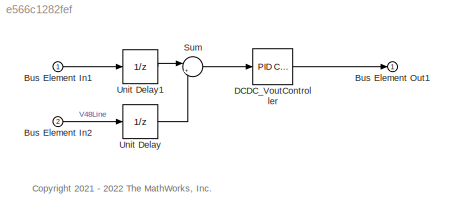
MODEL slx_e566c1282fef
KIND model
BLOCK [Inport] Bus Element In1
BLOCK [Inport] Bus Element In2
  Port = 2
BLOCK [Outport] Bus Element Out1
BLOCK [Reference] DCDC_VoutController  REF=slpidlib/PID Controller
  SourceBlock = slpidlib/PID Controller
  SourceType = PID 1dof
BLOCK [Sum] Sum
  Inputs = |+-
BLOCK [UnitDelay] Unit Delay
  HasFrameUpgradeWarning = on
  SampleTime = -1
BLOCK [UnitDelay] Unit Delay1
  HasFrameUpgradeWarning = on
  SampleTime = -1
ANNOTATION (root): <copyright redacted>
LINE Bus Element In1:1 -> Unit Delay1:1
LINE Bus Element In2:1 -> Unit Delay:1
LINE DCDC_VoutController:1 -> Bus Element Out1:1
LINE Sum:1 -> DCDC_VoutController:1
LINE Unit Delay1:1 -> Sum:1
LINE Unit Delay:1 -> Sum:2
